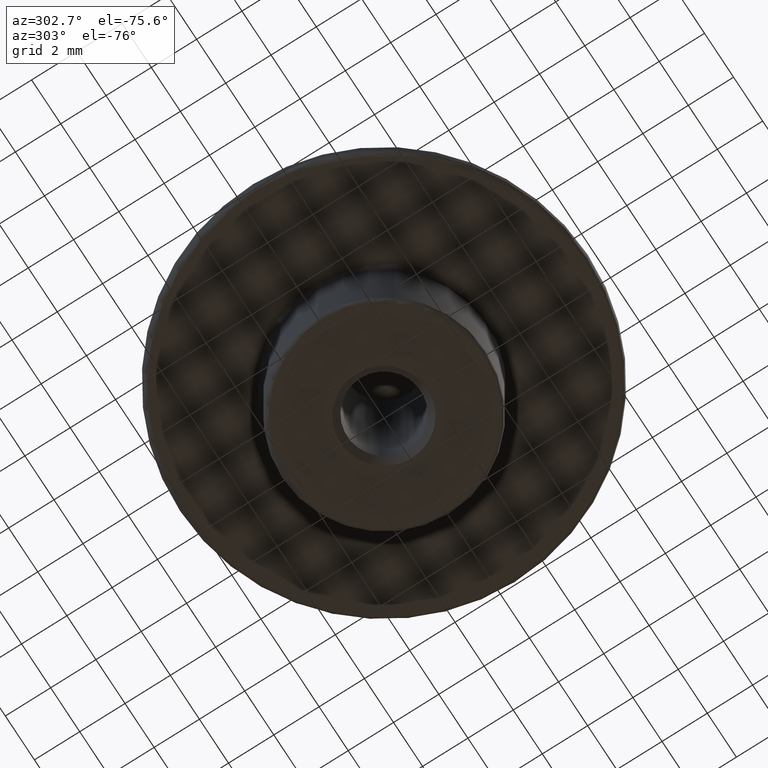
[diagram: clean part render]
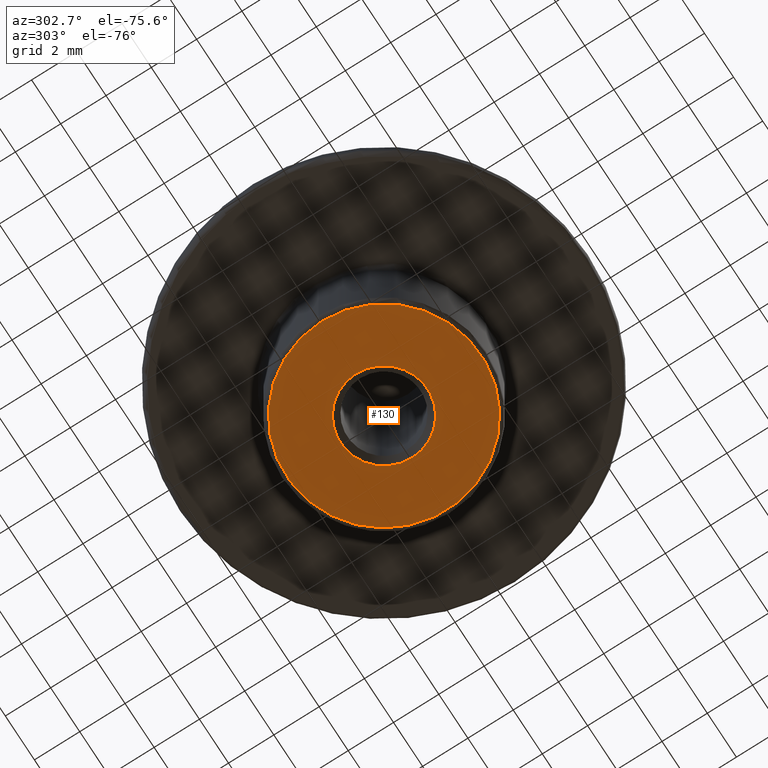
[diagram: same view with one face highlighted and labeled with its STEP entity id]
A machine part, auxiliary view. The second image highlights one B-rep face of the part: STEP entity #130.
In plain terms, the highlighted planar face has unit normal (0, 0, 1).
Its self-contained STEP definition (entity closure, byte-faithful):
#18=PLANE('',#149);
#27=FACE_BOUND('',#54,.T.);
#37=FACE_OUTER_BOUND('',#53,.T.);
#53=EDGE_LOOP('',(#108));
#54=EDGE_LOOP('',(#109));
#71=CIRCLE('',#148,4.3);
#72=CIRCLE('',#150,1.921);
#82=VERTEX_POINT('',#224);
#83=VERTEX_POINT('',#227);
#93=EDGE_CURVE('',#82,#82,#71,.T.);
#94=EDGE_CURVE('',#83,#83,#72,.T.);
#108=ORIENTED_EDGE('',*,*,#93,.F.);
#109=ORIENTED_EDGE('',*,*,#94,.F.);
#130=ADVANCED_FACE('',(#37,#27),#18,.F.);
#148=AXIS2_PLACEMENT_3D('',#225,#181,#182);
#149=AXIS2_PLACEMENT_3D('',#226,#183,#184);
#150=AXIS2_PLACEMENT_3D('',#228,#185,#186);
#181=DIRECTION('center_axis',(0.,0.,1.));
#182=DIRECTION('ref_axis',(1.,0.,0.));
#183=DIRECTION('center_axis',(0.,0.,1.));
#184=DIRECTION('ref_axis',(1.,0.,0.));
#185=DIRECTION('center_axis',(0.,0.,-1.));
#186=DIRECTION('ref_axis',(1.,0.,0.));
#224=CARTESIAN_POINT('',(-4.3,-5.26598123633362E-16,2.));
#225=CARTESIAN_POINT('Origin',(0.,0.,2.));
#226=CARTESIAN_POINT('Origin',(2.51521111380092E-16,1.02798428206033E-16,
2.));
#227=CARTESIAN_POINT('',(-1.921,2.35254650116207E-16,2.));
#228=CARTESIAN_POINT('Origin',(0.,0.,2.));